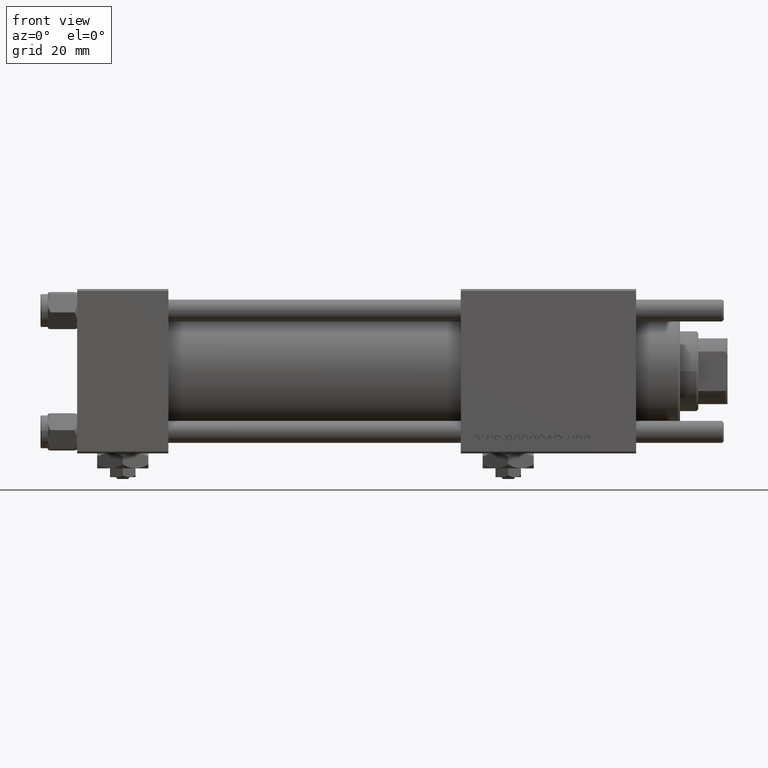
[diagram: clean part render]
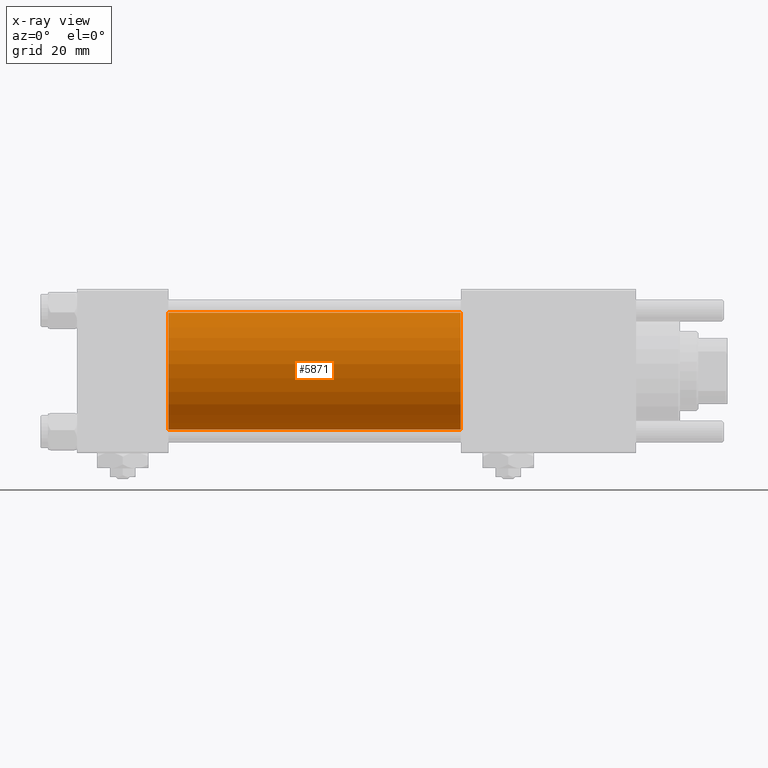
[diagram: x-ray — body ghosted, one internal face saturated and labeled with its STEP entity id]
A machine part, front view, then the same camera in x-ray: the body is ghosted and one INTERNAL B-rep face — a face not visible from any outside direction — is saturated and labeled: STEP entity #5871.
In plain terms, the highlighted cylindrical surface (partial cylindrical patch) has radius 16 mm, axis along (-1, -0, -0).
Its self-contained STEP definition (entity closure, byte-faithful):
#1237 = DIRECTION ( 'NONE',  ( -1.000000000000000000, -0.000000000000000000, -0.000000000000000000 ) ) ;
#1944 = ORIENTED_EDGE ( 'NONE', *, *, #37922, .T. ) ;
#1999 = DIRECTION ( 'NONE',  ( 1.000000000000000000, 0.000000000000000000, 0.000000000000000000 ) ) ;
#2343 = DIRECTION ( 'NONE',  ( -1.000000000000000000, -0.000000000000000000, -0.000000000000000000 ) ) ;
#3233 = LINE ( 'NONE', #24959, #58779 ) ;
#3837 = CARTESIAN_POINT ( 'NONE',  ( 105.0000000000000142, -2.602085213965210642E-15, 16.00000000000000000 ) ) ;
#5871 = ADVANCED_FACE ( 'NONE', ( #19384 ), #45619, .F. ) ;
#11225 = EDGE_CURVE ( 'NONE', #38165, #13671, #3233, .T. ) ;
#12099 = DIRECTION ( 'NONE',  ( 0.000000000000000000, 0.000000000000000000, -1.000000000000000000 ) ) ;
#13671 = VERTEX_POINT ( 'NONE', #38995 ) ;
#15681 = CARTESIAN_POINT ( 'NONE',  ( 25.00000000000000000, -2.602085213965210642E-15, 0.000000000000000000 ) ) ;
#15792 = DIRECTION ( 'NONE',  ( -1.000000000000000000, -0.000000000000000000, -0.000000000000000000 ) ) ;
#16812 = AXIS2_PLACEMENT_3D ( 'NONE', #55685, #1237, #22992 ) ;
#19129 = ORIENTED_EDGE ( 'NONE', *, *, #55532, .T. ) ;
#19384 = FACE_OUTER_BOUND ( 'NONE', #20895, .T. ) ;
#20363 = DIRECTION ( 'NONE',  ( 1.000000000000000000, 0.000000000000000000, 0.000000000000000000 ) ) ;
#20508 = EDGE_CURVE ( 'NONE', #13671, #25175, #36315, .T. ) ;
#20895 = EDGE_LOOP ( 'NONE', ( #19129, #1944, #40310, #40471 ) ) ;
#21961 = CARTESIAN_POINT ( 'NONE',  ( 105.0000000000000142, -6.426503353294456087E-16, -16.00000000000000000 ) ) ;
#22992 = DIRECTION ( 'NONE',  ( 0.000000000000000000, 0.000000000000000000, 1.000000000000000000 ) ) ;
#24959 = CARTESIAN_POINT ( 'NONE',  ( 105.0000000000000142, -2.602085213965210642E-15, 16.00000000000000000 ) ) ;
#25175 = VERTEX_POINT ( 'NONE', #29428 ) ;
#27385 = CIRCLE ( 'NONE', #51153, 16.00000000000000000 ) ;
#29428 = CARTESIAN_POINT ( 'NONE',  ( 25.00000000000000000, -6.426503353294456087E-16, -16.00000000000000000 ) ) ;
#33445 = AXIS2_PLACEMENT_3D ( 'NONE', #15681, #1999, #12099 ) ;
#33467 = CARTESIAN_POINT ( 'NONE',  ( 105.0000000000000142, -2.602085213965210642E-15, 0.000000000000000000 ) ) ;
#36315 = CIRCLE ( 'NONE', #33445, 16.00000000000000000 ) ;
#37922 = EDGE_CURVE ( 'NONE', #41982, #25175, #56867, .T. ) ;
#38165 = VERTEX_POINT ( 'NONE', #3837 ) ;
#38995 = CARTESIAN_POINT ( 'NONE',  ( 25.00000000000000000, -2.602085213965210642E-15, 16.00000000000000000 ) ) ;
#40310 = ORIENTED_EDGE ( 'NONE', *, *, #20508, .F. ) ;
#40471 = ORIENTED_EDGE ( 'NONE', *, *, #11225, .F. ) ;
#41982 = VERTEX_POINT ( 'NONE', #21961 ) ;
#45619 = CYLINDRICAL_SURFACE ( 'NONE', #16812, 16.00000000000000000 ) ;
#50754 = VECTOR ( 'NONE', #15792, 1000.000000000000000 ) ;
#51153 = AXIS2_PLACEMENT_3D ( 'NONE', #33467, #20363, #56070 ) ;
#51803 = CARTESIAN_POINT ( 'NONE',  ( 105.0000000000000142, -6.426503353294456087E-16, -16.00000000000000000 ) ) ;
#55532 = EDGE_CURVE ( 'NONE', #38165, #41982, #27385, .T. ) ;
#55685 = CARTESIAN_POINT ( 'NONE',  ( 105.0000000000000142, -2.602085213965210642E-15, 0.000000000000000000 ) ) ;
#56070 = DIRECTION ( 'NONE',  ( 0.000000000000000000, 0.000000000000000000, -1.000000000000000000 ) ) ;
#56867 = LINE ( 'NONE', #51803, #50754 ) ;
#58779 = VECTOR ( 'NONE', #2343, 1000.000000000000000 ) ;